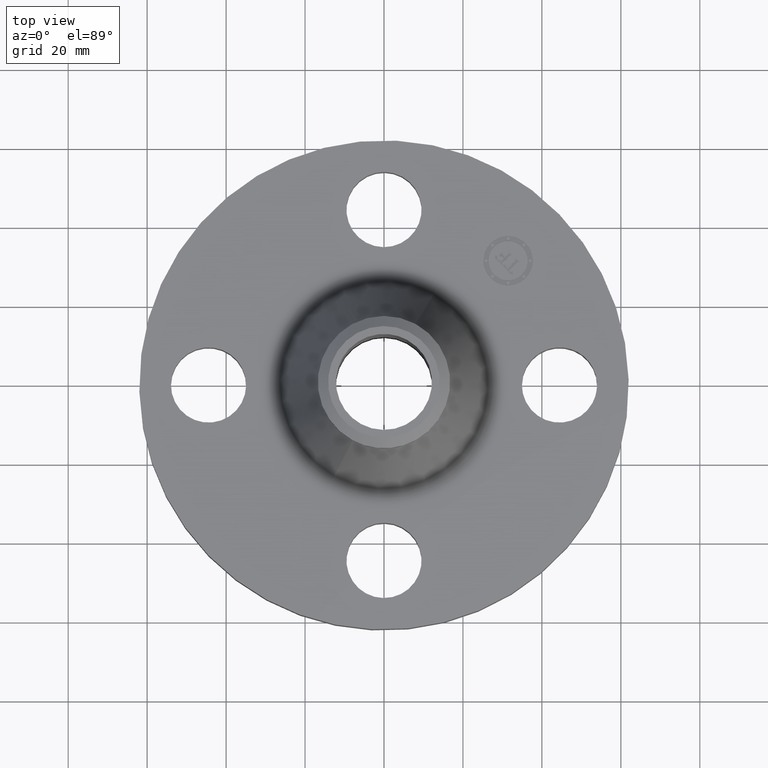
[diagram: clean part render]
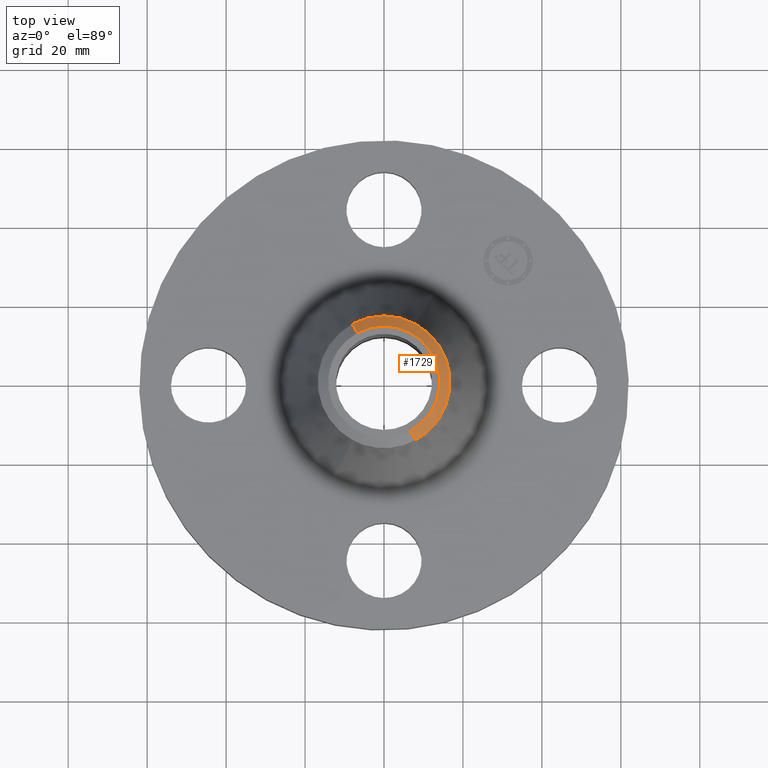
[diagram: same view with one face highlighted and labeled with its STEP entity id]
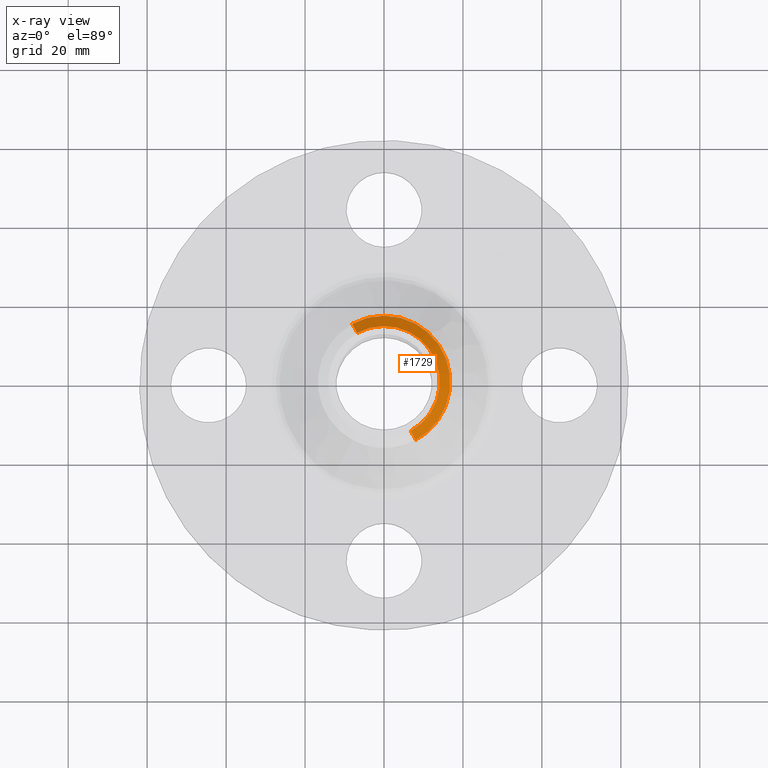
[diagram: x-ray of the same camera — body ghosted, the highlighted face saturated]
A machine part, top view. The second image highlights one B-rep face of the part: STEP entity #1729.
The next image is the same camera in x-ray: the body ghosted, the highlighted face saturated — about 0% of this face is hidden behind the body in this view.
In plain terms, the highlighted conical surface has half-angle 52.5 deg.
Its self-contained STEP definition (entity closure, byte-faithful):
#1037=AXIS2_PLACEMENT_3D('Circle Axis2P3D',#1035,#1036,$) ;
#1093=AXIS2_PLACEMENT_3D('Circle Axis2P3D',#1091,#1092,$) ;
#1710=AXIS2_PLACEMENT_3D('Cone Axis2P3D',#1707,#1708,#1709) ;
#1035=CARTESIAN_POINT('Axis2P3D Location',(-5.24514814784E-017,-1.4013217533E-011,2.38000000001)) ;
#1039=CARTESIAN_POINT('Vertex',(0.267155162633,-0.489024244991,2.38000000001)) ;
#1041=CARTESIAN_POINT('Vertex',(-0.267155162633,0.489024244991,2.38000000001)) ;
#1074=CARTESIAN_POINT('Vertex',(0.31642085548,0.57920449085,2.30114959959)) ;
#1088=CARTESIAN_POINT('Vertex',(-0.31642085548,0.57920449085,2.30114959959)) ;
#1091=CARTESIAN_POINT('Axis2P3D Location',(0.,0.,2.30114959959)) ;
#1117=CARTESIAN_POINT('Control Point',(0.31642085548,0.57920449085,2.30114959956)) ;
#1118=CARTESIAN_POINT('Control Point',(0.440462863734,0.511440032896,2.30114959956)) ;
#1119=CARTESIAN_POINT('Control Point',(0.546364388821,0.410469643241,2.30114959956)) ;
#1120=CARTESIAN_POINT('Control Point',(0.622162042478,0.282690230275,2.30114959957)) ;
#1121=CARTESIAN_POINT('Control Point',(0.697837957528,-1.62812093349E-013,2.30114959957)) ;
#1122=CARTESIAN_POINT('Control Point',(0.622162042478,-0.282690230275,2.30114959958)) ;
#1123=CARTESIAN_POINT('Control Point',(0.54636438882,-0.410469643241,2.30114959958)) ;
#1124=CARTESIAN_POINT('Control Point',(0.440462863733,-0.511440032896,2.30114959958)) ;
#1125=CARTESIAN_POINT('Control Point',(0.31642085548,-0.57920449085,2.30114959959)) ;
#1126=CARTESIAN_POINT('Vertex',(0.316420855481,-0.579204490851,2.30114959956)) ;
#1707=CARTESIAN_POINT('Axis2P3D Location',(0.,0.,2.38000000001)) ;
#1712=CARTESIAN_POINT('Line Origine',(-0.291788009056,0.53411436792,2.34057479979)) ;
#1717=CARTESIAN_POINT('Line Origine',(0.291788009056,-0.53411436792,2.34057479979)) ;
#1036=DIRECTION('Axis2P3D Direction',(0.,0.,-0.0393700787402)) ;
#1092=DIRECTION('Axis2P3D Direction',(-0.,0.,-0.0393700787402)) ;
#1708=DIRECTION('Axis2P3D Direction',(-0.,-0.,-0.0393700787402)) ;
#1709=DIRECTION('Axis2P3D XDirection',(-0.0188750212049,0.0345504945626,0.)) ;
#1713=DIRECTION('Vector Direction',(-0.014974561121,0.02741075027,-0.023966985394)) ;
#1718=DIRECTION('Vector Direction',(0.014974561121,-0.02741075027,-0.023966985394)) ;
#1714=VECTOR('Line Direction',#1713,0.0393700787402) ;
#1719=VECTOR('Line Direction',#1718,0.0393700787402) ;
#1723=ORIENTED_EDGE('',*,*,#1716,.F.) ;
#1724=ORIENTED_EDGE('',*,*,#1043,.F.) ;
#1725=ORIENTED_EDGE('',*,*,#1721,.T.) ;
#1726=ORIENTED_EDGE('',*,*,#1128,.T.) ;
#1727=ORIENTED_EDGE('',*,*,#1095,.F.) ;
#1729=ADVANCED_FACE('PartBody',(#1728),#1711,.T.) ;
#1116=B_SPLINE_CURVE_WITH_KNOTS('',5,(#1117,#1118,#1119,#1120,#1121,#1122,#1123,#1124,#1125),.UNSPECIFIED.,.F.,.U.,(6,3,6),(-17.9508296225,0.,17.9508296225),.UNSPECIFIED.) ;
#1038=CIRCLE('generated circle',#1037,0.557240157504) ;
#1094=CIRCLE('generated circle',#1093,0.660000000003) ;
#1711=CONICAL_SURFACE('Cone',#1710,0.557240157482,0.916297857297) ;
#1043=EDGE_CURVE('',#1040,#1042,#1038,.F.) ;
#1095=EDGE_CURVE('',#1089,#1075,#1094,.T.) ;
#1128=EDGE_CURVE('',#1127,#1075,#1116,.F.) ;
#1716=EDGE_CURVE('',#1042,#1089,#1715,.T.) ;
#1721=EDGE_CURVE('',#1040,#1127,#1720,.T.) ;
#1722=EDGE_LOOP('',(#1723,#1724,#1725,#1726,#1727)) ;
#1728=FACE_OUTER_BOUND('',#1722,.T.) ;
#1715=LINE('Line',#1712,#1714) ;
#1720=LINE('Line',#1717,#1719) ;
#1040=VERTEX_POINT('',#1039) ;
#1042=VERTEX_POINT('',#1041) ;
#1075=VERTEX_POINT('',#1074) ;
#1089=VERTEX_POINT('',#1088) ;
#1127=VERTEX_POINT('',#1126) ;